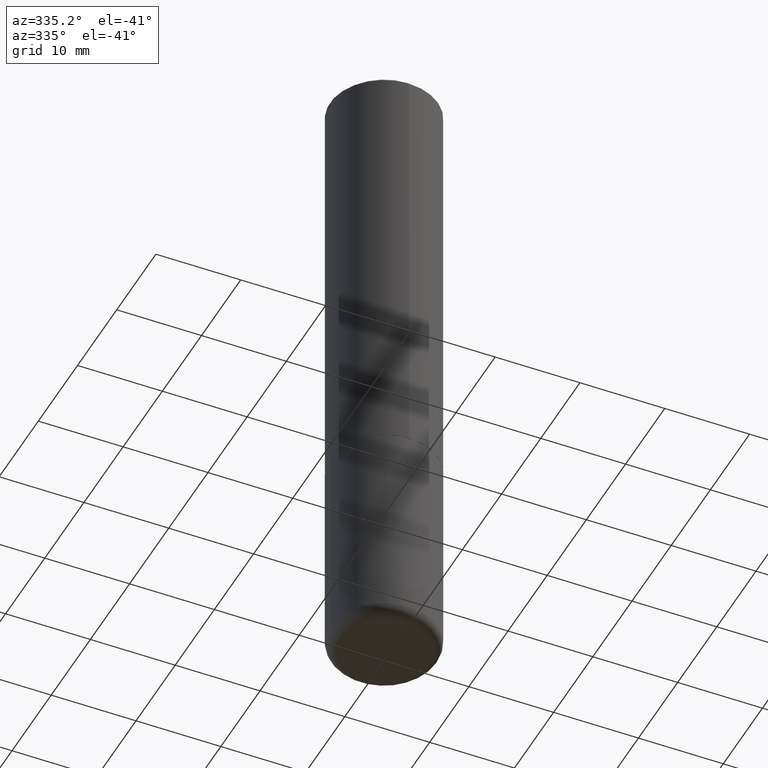
[diagram: clean part render]
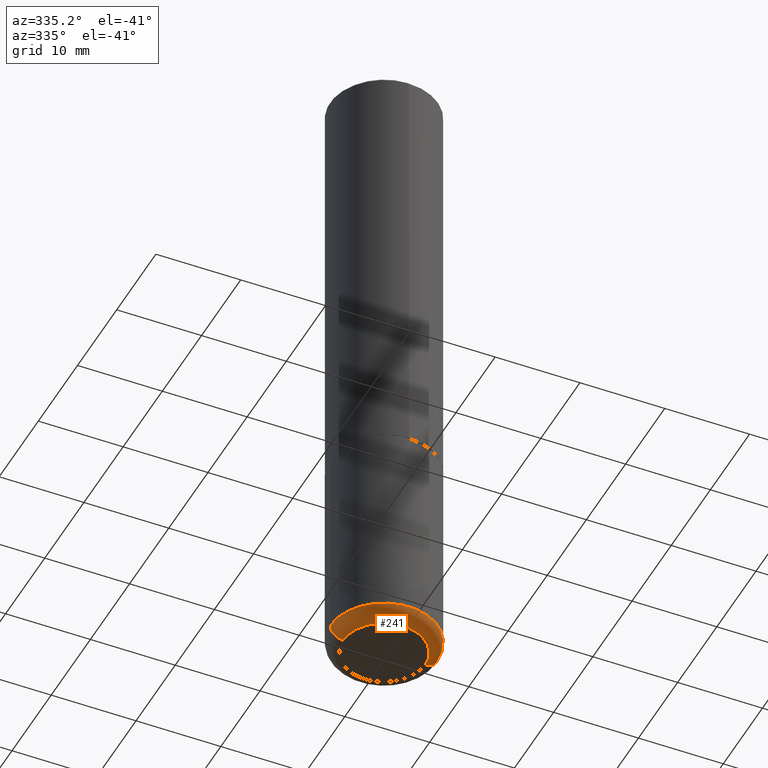
[diagram: same view with one face highlighted and labeled with its STEP entity id]
A machine part, auxiliary view. The second image highlights one B-rep face of the part: STEP entity #241.
In plain terms, the highlighted toroidal blend (fillet) surface has major radius 4.826 mm and minor (blend) radius 1.524 mm.
Its self-contained STEP definition (entity closure, byte-faithful):
#12 = DIRECTION ( 'NONE',  ( 1.000000000000000000, -6.982962677686265133E-15, 4.883557194083112340E-29 ) ) ;
#27 = CARTESIAN_POINT ( 'NONE',  ( -0.1899999999999999745, -8.806505557691924342E-15, -2.999999999999999556 ) ) ;
#44 = VERTEX_POINT ( 'NONE', #292 ) ;
#45 = AXIS2_PLACEMENT_3D ( 'NONE', #198, #196, #12 ) ;
#51 = CIRCLE ( 'NONE', #191, 0.05999999999999966471 ) ;
#63 = DIRECTION ( 'NONE',  ( -2.445468806185136597E-29, 3.491481338843145583E-15, 1.000000000000000000 ) ) ;
#67 = FACE_OUTER_BOUND ( 'NONE', #132, .T. ) ;
#85 = CIRCLE ( 'NONE', #295, 0.2500000000000000000 ) ;
#91 = CARTESIAN_POINT ( 'NONE',  ( -0.1899999999999999745, -8.914923938254659640E-15, -2.940000000000000391 ) ) ;
#97 = VERTEX_POINT ( 'NONE', #27 ) ;
#105 = DIRECTION ( 'NONE',  ( 1.000000000000000000, -6.982962677686275388E-15, 0.000000000000000000 ) ) ;
#115 = EDGE_CURVE ( 'NONE', #331, #144, #85, .T. ) ;
#116 = DIRECTION ( 'NONE',  ( 1.000000000000000000, -6.982962677686262766E-15, 0.000000000000000000 ) ) ;
#132 = EDGE_LOOP ( 'NONE', ( #203, #282, #410, #137 ) ) ;
#137 = ORIENTED_EDGE ( 'NONE', *, *, #115, .F. ) ;
#141 = CARTESIAN_POINT ( 'NONE',  ( -0.2499999999999998335, -8.488598296798600727E-15, -2.940000000000000391 ) ) ;
#143 = CARTESIAN_POINT ( 'NONE',  ( 0.1899999999999999745, -1.159171804495923808E-14, -2.940000000000000391 ) ) ;
#144 = VERTEX_POINT ( 'NONE', #381 ) ;
#161 = EDGE_CURVE ( 'NONE', #97, #44, #173, .T. ) ;
#173 = CIRCLE ( 'NONE', #339, 0.1899999999999999745 ) ;
#188 = EDGE_CURVE ( 'NONE', #97, #331, #394, .T. ) ;
#191 = AXIS2_PLACEMENT_3D ( 'NONE', #143, #373, #105 ) ;
#196 = DIRECTION ( 'NONE',  ( -2.445468806185136597E-29, 3.491481338843145583E-15, 1.000000000000000000 ) ) ;
#198 = CARTESIAN_POINT ( 'NONE',  ( 7.189678290184301639E-29, -1.026495513619884961E-14, -2.940000000000000391 ) ) ;
#203 = ORIENTED_EDGE ( 'NONE', *, *, #188, .F. ) ;
#219 = DIRECTION ( 'NONE',  ( 1.000000000000000000, -6.982962677686273021E-15, 0.000000000000000000 ) ) ;
#241 = ADVANCED_FACE ( 'NONE', ( #67 ), #259, .T. ) ;
#255 = DIRECTION ( 'NONE',  ( -2.445468806185136597E-29, 3.491481338843145583E-15, 1.000000000000000000 ) ) ;
#259 = TOROIDAL_SURFACE ( 'NONE', #45, 0.1899999999999999745, 0.05999999999999968553 ) ;
#282 = ORIENTED_EDGE ( 'NONE', *, *, #161, .T. ) ;
#292 = CARTESIAN_POINT ( 'NONE',  ( 0.1899999999999999745, -1.180120692528982640E-14, -2.999999999999999556 ) ) ;
#294 = CARTESIAN_POINT ( 'NONE',  ( 7.336406418555408669E-29, -1.047444401652943478E-14, -2.999999999999999556 ) ) ;
#295 = AXIS2_PLACEMENT_3D ( 'NONE', #391, #63, #116 ) ;
#315 = EDGE_CURVE ( 'NONE', #44, #144, #51, .T. ) ;
#323 = DIRECTION ( 'NONE',  ( 7.105427357601001859E-15, 1.000000000000000000, -3.491481338843145583E-15 ) ) ;
#331 = VERTEX_POINT ( 'NONE', #141 ) ;
#339 = AXIS2_PLACEMENT_3D ( 'NONE', #294, #255, #219 ) ;
#373 = DIRECTION ( 'NONE',  ( -6.982962677686266711E-15, -1.000000000000000000, 3.491481338843145583E-15 ) ) ;
#381 = CARTESIAN_POINT ( 'NONE',  ( 0.2499999999999998335, -1.201069580562041471E-14, -2.940000000000000391 ) ) ;
#391 = CARTESIAN_POINT ( 'NONE',  ( 7.189678290184301639E-29, -1.026495513619884961E-14, -2.940000000000000391 ) ) ;
#392 = DIRECTION ( 'NONE',  ( -1.000000000000000000, 7.105427357600997914E-15, 0.000000000000000000 ) ) ;
#394 = CIRCLE ( 'NONE', #399, 0.05999999999999966471 ) ;
#399 = AXIS2_PLACEMENT_3D ( 'NONE', #91, #323, #392 ) ;
#410 = ORIENTED_EDGE ( 'NONE', *, *, #315, .T. ) ;